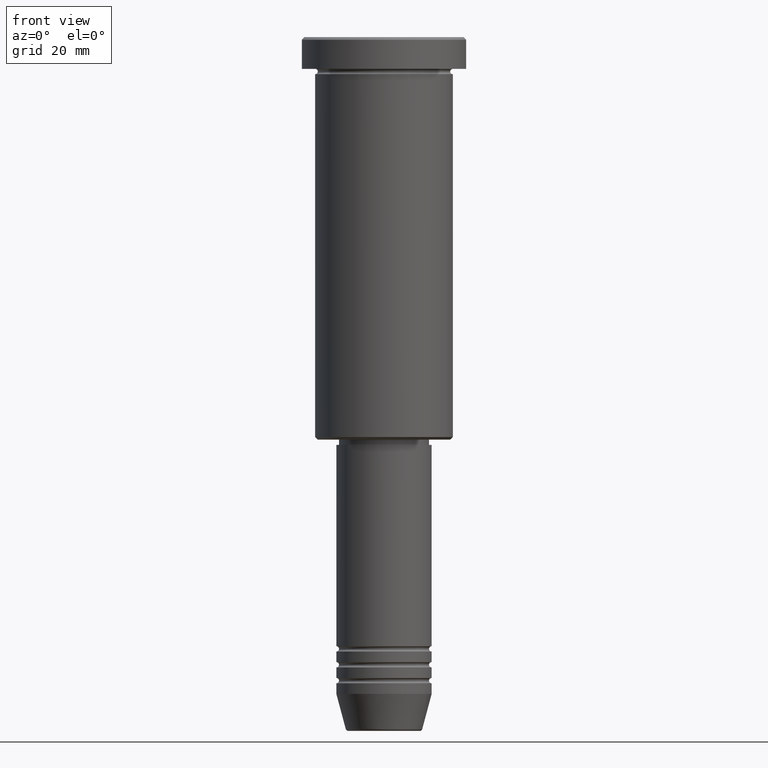
[diagram: clean part render]
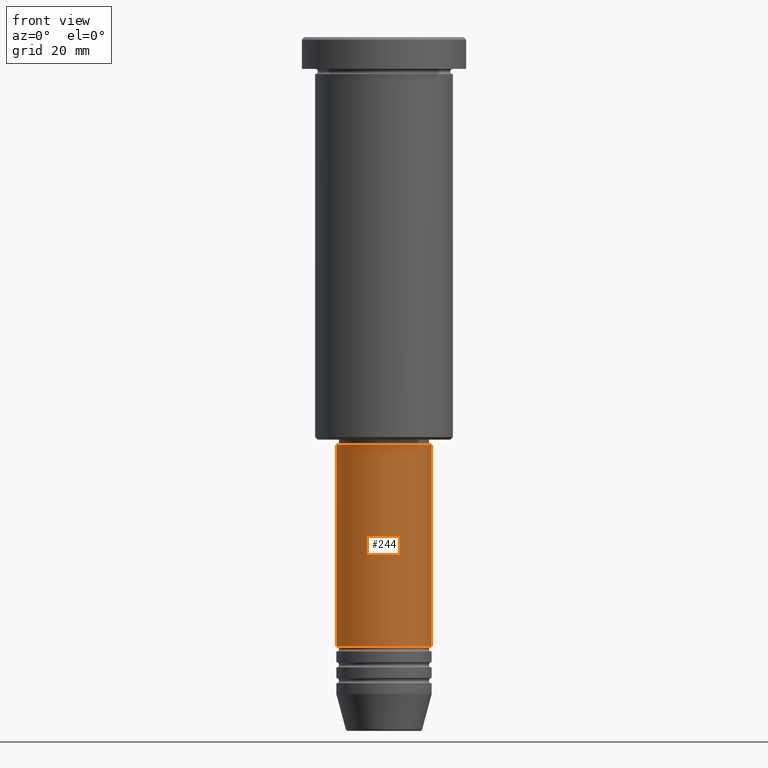
[diagram: same view with one face highlighted and labeled with its STEP entity id]
A machine part, front view. The second image highlights one B-rep face of the part: STEP entity #244.
In plain terms, the highlighted cylindrical surface (partial cylindrical patch) has radius 9 mm, axis along (-0, -0, 1).
Its self-contained STEP definition (entity closure, byte-faithful):
#8 = EDGE_LOOP ( 'NONE', ( #915, #260, #935, #1092 ) ) ;
#39 = DIRECTION ( 'NONE',  ( 1.000000000000000000, 0.000000000000000000, 0.000000000000000000 ) ) ;
#45 = CARTESIAN_POINT ( 'NONE',  ( 0.000000000000000000, 0.000000000000000000, 0.000000000000000000 ) ) ;
#51 = CARTESIAN_POINT ( 'NONE',  ( -9.000000000000000000, 1.102182119232617714E-15, -76.99999999999998579 ) ) ;
#119 = EDGE_CURVE ( 'NONE', #766, #984, #133, .T. ) ;
#133 = LINE ( 'NONE', #1028, #384 ) ;
#135 = LINE ( 'NONE', #139, #477 ) ;
#139 = CARTESIAN_POINT ( 'NONE',  ( -9.000000000000000000, 1.102182119232617714E-15, 0.000000000000000000 ) ) ;
#209 = CARTESIAN_POINT ( 'NONE',  ( 0.000000000000000000, 0.000000000000000000, -76.99999999999998579 ) ) ;
#210 = EDGE_CURVE ( 'NONE', #335, #984, #525, .T. ) ;
#221 = DIRECTION ( 'NONE',  ( -0.000000000000000000, -0.000000000000000000, 1.000000000000000000 ) ) ;
#244 = ADVANCED_FACE ( 'NONE', ( #795 ), #968, .T. ) ;
#260 = ORIENTED_EDGE ( 'NONE', *, *, #1013, .T. ) ;
#271 = AXIS2_PLACEMENT_3D ( 'NONE', #1047, #758, #39 ) ;
#310 = DIRECTION ( 'NONE',  ( -0.000000000000000000, -0.000000000000000000, 1.000000000000000000 ) ) ;
#335 = VERTEX_POINT ( 'NONE', #51 ) ;
#384 = VECTOR ( 'NONE', #310, 1000.000000000000000 ) ;
#408 = VERTEX_POINT ( 'NONE', #1008 ) ;
#418 = DIRECTION ( 'NONE',  ( -0.000000000000000000, -0.000000000000000000, 1.000000000000000000 ) ) ;
#436 = AXIS2_PLACEMENT_3D ( 'NONE', #209, #568, #571 ) ;
#477 = VECTOR ( 'NONE', #221, 1000.000000000000000 ) ;
#525 = CIRCLE ( 'NONE', #436, 9.000000000000000000 ) ;
#568 = DIRECTION ( 'NONE',  ( -0.000000000000000000, -0.000000000000000000, 1.000000000000000000 ) ) ;
#571 = DIRECTION ( 'NONE',  ( 1.000000000000000000, 0.000000000000000000, 0.000000000000000000 ) ) ;
#646 = EDGE_CURVE ( 'NONE', #408, #335, #135, .T. ) ;
#701 = DIRECTION ( 'NONE',  ( 1.000000000000000000, 0.000000000000000000, 0.000000000000000000 ) ) ;
#758 = DIRECTION ( 'NONE',  ( -0.000000000000000000, -0.000000000000000000, 1.000000000000000000 ) ) ;
#766 = VERTEX_POINT ( 'NONE', #1161 ) ;
#776 = AXIS2_PLACEMENT_3D ( 'NONE', #45, #418, #701 ) ;
#795 = FACE_OUTER_BOUND ( 'NONE', #8, .T. ) ;
#915 = ORIENTED_EDGE ( 'NONE', *, *, #646, .F. ) ;
#935 = ORIENTED_EDGE ( 'NONE', *, *, #119, .T. ) ;
#942 = CARTESIAN_POINT ( 'NONE',  ( 9.000000000000000000, 0.000000000000000000, -76.99999999999998579 ) ) ;
#968 = CYLINDRICAL_SURFACE ( 'NONE', #776, 9.000000000000000000 ) ;
#984 = VERTEX_POINT ( 'NONE', #942 ) ;
#1008 = CARTESIAN_POINT ( 'NONE',  ( -9.000000000000000000, 1.102182119232617714E-15, -114.9999999999999574 ) ) ;
#1013 = EDGE_CURVE ( 'NONE', #408, #766, #1084, .T. ) ;
#1028 = CARTESIAN_POINT ( 'NONE',  ( 9.000000000000000000, 0.000000000000000000, 0.000000000000000000 ) ) ;
#1047 = CARTESIAN_POINT ( 'NONE',  ( 0.000000000000000000, 0.000000000000000000, -114.9999999999999574 ) ) ;
#1084 = CIRCLE ( 'NONE', #271, 9.000000000000000000 ) ;
#1092 = ORIENTED_EDGE ( 'NONE', *, *, #210, .F. ) ;
#1161 = CARTESIAN_POINT ( 'NONE',  ( 9.000000000000000000, 0.000000000000000000, -114.9999999999999574 ) ) ;